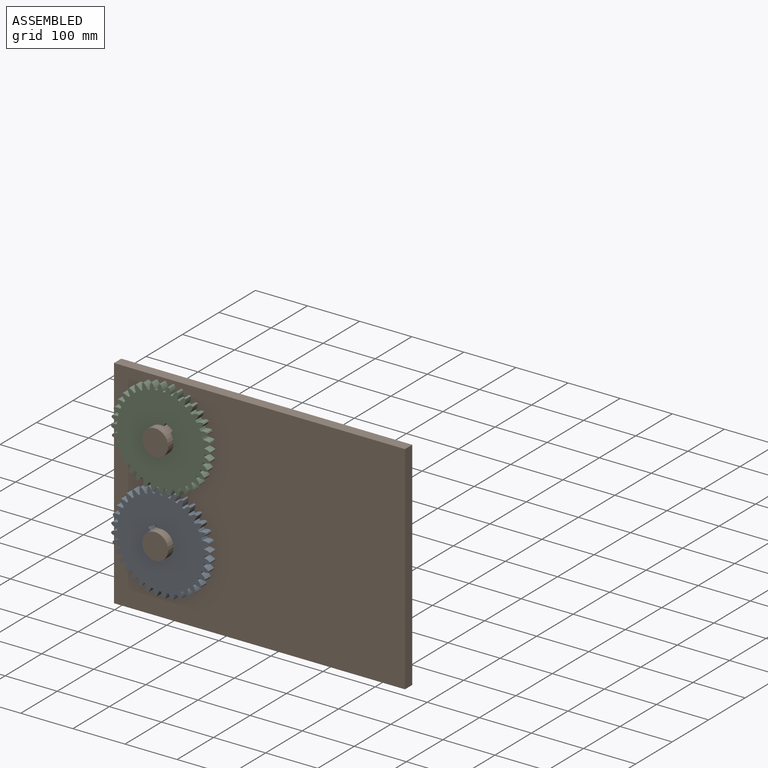
[diagram: assembled view]
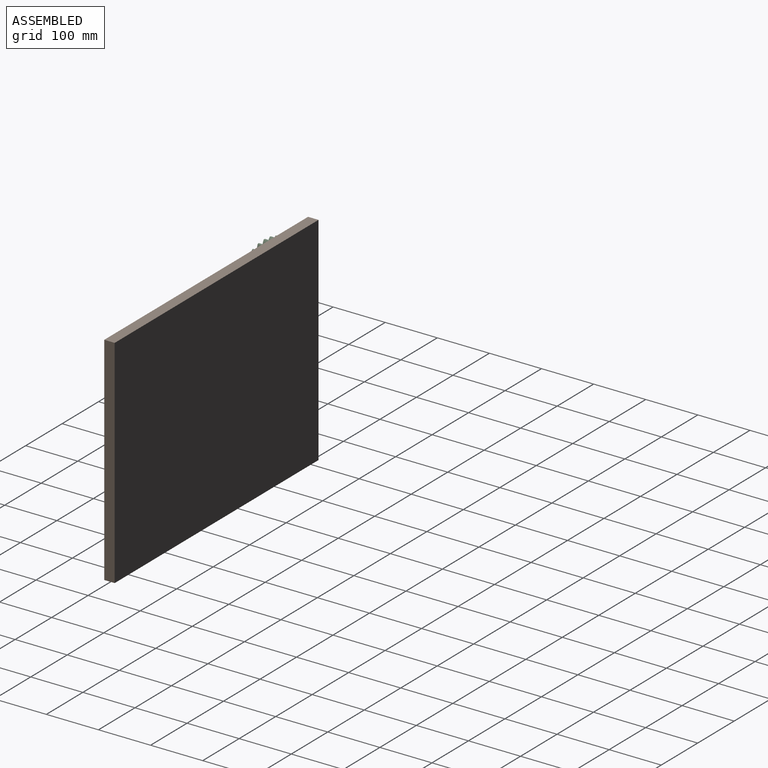
[diagram: assembled view, second angle]
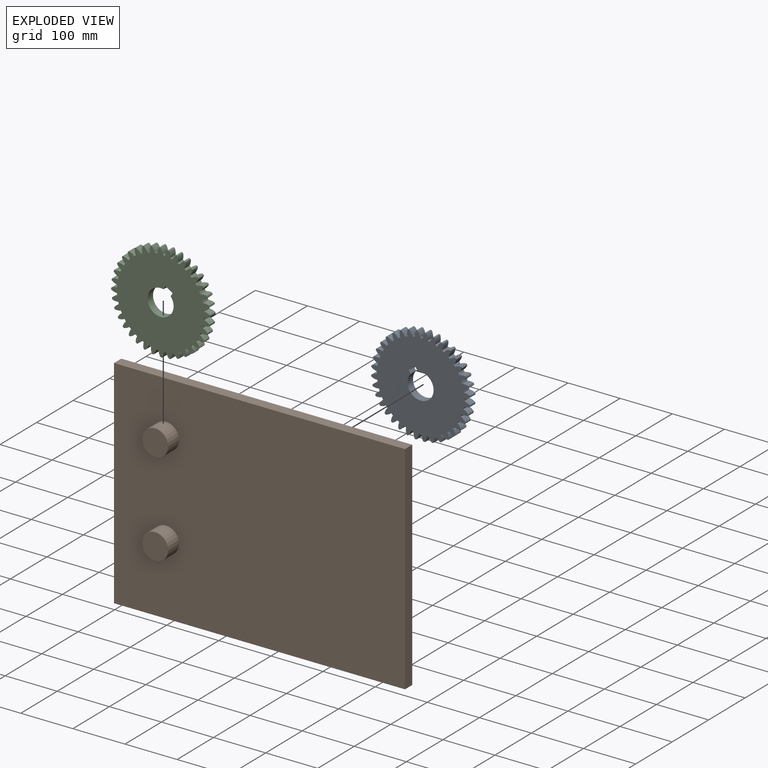
[diagram: exploded view]
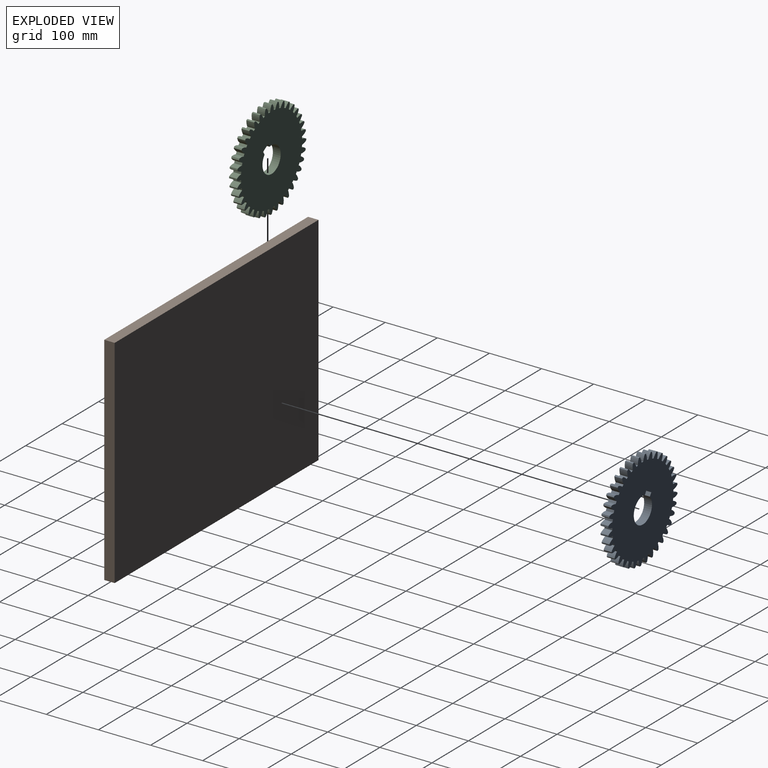
[diagram: exploded view, second angle]
ASSEMBLY  parts=3 mates=2
PART A: 150 faces, bbox 189.9x15x189.9 mm
  f0: cylinder r=83.75mm len=15mm, axis (0,1,0), area 66.8mm2, adj f39,f40,f142,f145
  f1: cylinder r=83.75mm len=15mm, axis (0,1,0), area 66.8mm2, adj f39,f40,f49,f52
  f2: cylinder r=83.75mm len=15mm, axis (0,1,0), area 66.8mm2, adj f39,f40,f51,f55
  f3: cylinder r=83.75mm len=15mm, axis (0,1,0), area 66.8mm2, adj f39,f40,f109,f112
  f4: cylinder r=83.75mm len=15mm, axis (0,1,0), area 66.8mm2, adj f39,f40,f139,f141
  f5: cylinder r=83.75mm len=15mm, axis (0,1,0), area 66.8mm2, adj f39,f40,f130,f133
  f6: cylinder r=83.75mm len=15mm, axis (0,1,0), area 66.8mm2, adj f39,f40,f115,f118
  f7: cylinder r=83.75mm len=15mm, axis (0,1,0), area 66.8mm2, adj f39,f40,f127,f129
  f8: cylinder r=83.75mm len=15mm, axis (0,1,0), area 66.8mm2, adj f39,f40,f132,f136
  f9: cylinder r=83.75mm len=15mm, axis (0,1,0), area 66.8mm2, adj f39,f40,f94,f97
  f10: cylinder r=83.75mm len=15mm, axis (0,1,0), area 66.8mm2, adj f39,f40,f61,f64
  f11: cylinder r=83.75mm len=15mm, axis (0,1,0), area 66.8mm2, adj f39,f40,f54,f58
  f12: cylinder r=83.75mm len=15mm, axis (0,1,0), area 66.8mm2, adj f39,f40,f124,f126
  f13: cylinder r=83.75mm len=15mm, axis (0,1,0), area 66.8mm2, adj f39,f40,f103,f106
  f14: cylinder r=83.75mm len=15mm, axis (0,1,0), area 66.8mm2, adj f39,f40,f111,f114
  f15: cylinder r=83.75mm len=15mm, axis (0,1,0), area 66.8mm2, adj f39,f40,f57,f60
  f16: cylinder r=83.75mm len=15mm, axis (0,1,0), area 66.8mm2, adj f39,f40,f63,f67
  f17: cylinder r=83.75mm len=15mm, axis (0,1,0), area 66.8mm2, adj f39,f40,f66,f70
  f18: cylinder r=83.75mm len=15mm, axis (0,1,0), area 66.8mm2, adj f39,f40,f69,f73
  f19: cylinder r=83.75mm len=15mm, axis (0,1,0), area 66.8mm2, adj f39,f40,f72,f76
  f20: cylinder r=83.75mm len=15mm, axis (0,1,0), area 66.8mm2, adj f39,f40,f75,f79
  f21: cylinder r=83.75mm len=15mm, axis (0,1,0), area 66.8mm2, adj f39,f40,f78,f82
  f22: cylinder r=83.75mm len=15mm, axis (0,1,0), area 66.8mm2, adj f39,f40,f81,f85
  f23: cylinder r=83.75mm len=15mm, axis (0,1,0), area 66.8mm2, adj f39,f40,f84,f88
  f24: cylinder r=83.75mm len=15mm, axis (0,1,0), area 66.8mm2, adj f39,f40,f87,f91
  f25: cylinder r=83.75mm len=15mm, axis (0,1,0), area 66.8mm2, adj f39,f40,f90,f93
  f26: cylinder r=83.75mm len=15mm, axis (0,1,0), area 66.8mm2, adj f39,f40,f100,f102
  f27: cylinder r=83.75mm len=15mm, axis (0,1,0), area 66.8mm2, adj f39,f40,f46,f48
  f28: cylinder r=83.75mm len=15mm, axis (0,1,0), area 66.8mm2, adj f39,f40,f121,f123
  f29: cylinder r=83.75mm len=15mm, axis (0,1,0), area 66.8mm2, adj f38,f39,f40,f143
  f30: cylinder r=83.75mm len=15mm, axis (0,1,0), area 66.8mm2, adj f39,f40,f105,f108
  f31: cylinder r=83.75mm len=15mm, axis (0,1,0), area 66.8mm2, adj f39,f40,f42,f45
  f32: cylinder r=83.75mm len=15mm, axis (0,1,0), area 66.8mm2, adj f39,f40,f117,f120
  f33: cylinder r=83.75mm len=15mm, axis (0,1,0), area 66.8mm2, adj f39,f40,f96,f99
  f34: cylinder r=83.75mm len=15mm, axis (0,1,0), area 66.8mm2, adj f39,f40,f135,f138
  f35: cylinder r=83.75mm len=15mm, axis (0,1,0), area 66.8mm2, adj f36,f39,f40,f43
  f36: cylinder r=22.5mm len=15mm, axis (0,1,0), area 181.4mm2, adj f35,f37,f39,f40
  f37: cylinder r=95mm len=15mm, axis (0,1,0), area 44.4mm2, adj f36,f38,f39,f40
  f38: cylinder r=22.5mm len=15mm, axis (0,1,0), area 181.4mm2, adj f29,f37,f39,f40
  f39: plane 189.93x189.93mm, normal (0,-1,0), area 23086.6mm2, adj f0,f1,f2,f3,f4,f5,f6,f7
  f40: plane 189.93x189.93mm, normal (0,1,0), area 23086.6mm2, adj f0,f1,f2,f3,f4,f5,f6,f7
  f41: cylinder r=95mm len=15mm, axis (0,1,0), area 44.4mm2, adj f39,f40,f42,f43
  f42: cylinder r=22.5mm len=15mm, axis (0,1,0), area 181.4mm2, adj f31,f39,f40,f41
  f43: cylinder r=22.5mm len=15mm, axis (0,1,0), area 181.4mm2, adj f35,f39,f40,f41
  f44: cylinder r=95mm len=15mm, axis (0,1,0), area 44.4mm2, adj f39,f40,f45,f46
  f45: cylinder r=22.5mm len=15mm, axis (0,1,0), area 181.4mm2, adj f31,f39,f40,f44
  f46: cylinder r=22.5mm len=15mm, axis (0,1,0), area 181.4mm2, adj f27,f39,f40,f44
  f47: cylinder r=95mm len=15mm, axis (0,1,0), area 44.4mm2, adj f39,f40,f48,f49
  f48: cylinder r=22.5mm len=15mm, axis (0,1,0), area 181.4mm2, adj f27,f39,f40,f47
  f49: cylinder r=22.5mm len=15mm, axis (0,1,0), area 181.4mm2, adj f1,f39,f40,f47
  f50: cylinder r=95mm len=15mm, axis (0,1,0), area 44.4mm2, adj f39,f40,f51,f52
  f51: cylinder r=22.5mm len=15mm, axis (0,1,0), area 181.4mm2, adj f2,f39,f40,f50
  f52: cylinder r=22.5mm len=15mm, axis (0,1,0), area 181.4mm2, adj f1,f39,f40,f50
  f53: cylinder r=95mm len=15mm, axis (0,1,0), area 44.4mm2, adj f39,f40,f54,f55
  f54: cylinder r=22.5mm len=15mm, axis (0,1,0), area 181.4mm2, adj f11,f39,f40,f53
  f55: cylinder r=22.5mm len=15mm, axis (0,1,0), area 181.4mm2, adj f2,f39,f40,f53
  f56: cylinder r=95mm len=15mm, axis (0,1,0), area 44.4mm2, adj f39,f40,f57,f58
  f57: cylinder r=22.5mm len=15mm, axis (0,1,0), area 181.4mm2, adj f15,f39,f40,f56
  f58: cylinder r=22.5mm len=15mm, axis (0,1,0), area 181.4mm2, adj f11,f39,f40,f56
  f59: cylinder r=95mm len=15mm, axis (0,1,0), area 44.4mm2, adj f39,f40,f60,f61
  f60: cylinder r=22.5mm len=15mm, axis (0,1,0), area 181.4mm2, adj f15,f39,f40,f59
  f61: cylinder r=22.5mm len=15mm, axis (0,1,0), area 181.4mm2, adj f10,f39,f40,f59
  f62: cylinder r=95mm len=15mm, axis (0,1,0), area 44.4mm2, adj f39,f40,f63,f64
  f63: cylinder r=22.5mm len=15mm, axis (0,1,0), area 181.4mm2, adj f16,f39,f40,f62
  f64: cylinder r=22.5mm len=15mm, axis (0,1,0), area 181.4mm2, adj f10,f39,f40,f62
  f65: cylinder r=95mm len=15mm, axis (0,1,0), area 44.4mm2, adj f39,f40,f66,f67
  f66: cylinder r=22.5mm len=15mm, axis (0,1,0), area 181.4mm2, adj f17,f39,f40,f65
  f67: cylinder r=22.5mm len=15mm, axis (0,1,0), area 181.4mm2, adj f16,f39,f40,f65
  f68: cylinder r=95mm len=15mm, axis (0,1,0), area 44.4mm2, adj f39,f40,f69,f70
  f69: cylinder r=22.5mm len=15mm, axis (0,1,0), area 181.4mm2, adj f18,f39,f40,f68
  f70: cylinder r=22.5mm len=15mm, axis (0,1,0), area 181.4mm2, adj f17,f39,f40,f68
  f71: cylinder r=95mm len=15mm, axis (0,1,0), area 44.4mm2, adj f39,f40,f72,f73
  f72: cylinder r=22.5mm len=15mm, axis (0,1,0), area 181.4mm2, adj f19,f39,f40,f71
  f73: cylinder r=22.5mm len=15mm, axis (0,1,0), area 181.4mm2, adj f18,f39,f40,f71
  f74: cylinder r=95mm len=15mm, axis (0,1,0), area 44.4mm2, adj f39,f40,f75,f76
  f75: cylinder r=22.5mm len=15mm, axis (0,1,0), area 181.4mm2, adj f20,f39,f40,f74
  f76: cylinder r=22.5mm len=15mm, axis (0,1,0), area 181.4mm2, adj f19,f39,f40,f74
  f77: cylinder r=95mm len=15mm, axis (0,1,0), area 44.4mm2, adj f39,f40,f78,f79
  f78: cylinder r=22.5mm len=15mm, axis (0,1,0), area 181.4mm2, adj f21,f39,f40,f77
  f79: cylinder r=22.5mm len=15mm, axis (0,1,0), area 181.4mm2, adj f20,f39,f40,f77
  f80: cylinder r=95mm len=15mm, axis (0,1,0), area 44.4mm2, adj f39,f40,f81,f82
  f81: cylinder r=22.5mm len=15mm, axis (0,1,0), area 181.4mm2, adj f22,f39,f40,f80
  f82: cylinder r=22.5mm len=15mm, axis (0,1,0), area 181.4mm2, adj f21,f39,f40,f80
  f83: cylinder r=95mm len=15mm, axis (0,1,0), area 44.4mm2, adj f39,f40,f84,f85
  f84: cylinder r=22.5mm len=15mm, axis (0,1,0), area 181.4mm2, adj f23,f39,f40,f83
  f85: cylinder r=22.5mm len=15mm, axis (0,1,0), area 181.4mm2, adj f22,f39,f40,f83
  f86: cylinder r=95mm len=15mm, axis (0,1,0), area 44.4mm2, adj f39,f40,f87,f88
  f87: cylinder r=22.5mm len=15mm, axis (0,1,0), area 181.4mm2, adj f24,f39,f40,f86
  f88: cylinder r=22.5mm len=15mm, axis (0,1,0), area 181.4mm2, adj f23,f39,f40,f86
  f89: cylinder r=95mm len=15mm, axis (0,1,0), area 44.4mm2, adj f39,f40,f90,f91
  f90: cylinder r=22.5mm len=15mm, axis (0,1,0), area 181.4mm2, adj f25,f39,f40,f89
  f91: cylinder r=22.5mm len=15mm, axis (0,1,0), area 181.4mm2, adj f24,f39,f40,f89
  f92: cylinder r=95mm len=15mm, axis (0,1,0), area 44.4mm2, adj f39,f40,f93,f94
  f93: cylinder r=22.5mm len=15mm, axis (0,1,0), area 181.4mm2, adj f25,f39,f40,f92
  f94: cylinder r=22.5mm len=15mm, axis (0,1,0), area 181.4mm2, adj f9,f39,f40,f92
  f95: cylinder r=95mm len=15mm, axis (0,1,0), area 44.4mm2, adj f39,f40,f96,f97
  f96: cylinder r=22.5mm len=15mm, axis (0,1,0), area 181.4mm2, adj f33,f39,f40,f95
  f97: cylinder r=22.5mm len=15mm, axis (0,1,0), area 181.4mm2, adj f9,f39,f40,f95
  f98: cylinder r=95mm len=15mm, axis (0,1,0), area 44.4mm2, adj f39,f40,f99,f100
  f99: cylinder r=22.5mm len=15mm, axis (0,1,0), area 181.4mm2, adj f33,f39,f40,f98
  f100: cylinder r=22.5mm len=15mm, axis (0,1,0), area 181.4mm2, adj f26,f39,f40,f98
  f101: cylinder r=95mm len=15mm, axis (0,1,0), area 44.4mm2, adj f39,f40,f102,f103
  f102: cylinder r=22.5mm len=15mm, axis (0,1,0), area 181.4mm2, adj f26,f39,f40,f101
  f103: cylinder r=22.5mm len=15mm, axis (0,1,0), area 181.4mm2, adj f13,f39,f40,f101
  f104: cylinder r=95mm len=15mm, axis (0,1,0), area 44.4mm2, adj f39,f40,f105,f106
  f105: cylinder r=22.5mm len=15mm, axis (0,1,0), area 181.4mm2, adj f30,f39,f40,f104
  f106: cylinder r=22.5mm len=15mm, axis (0,1,0), area 181.4mm2, adj f13,f39,f40,f104
  f107: cylinder r=95mm len=15mm, axis (0,1,0), area 44.4mm2, adj f39,f40,f108,f109
  f108: cylinder r=22.5mm len=15mm, axis (0,1,0), area 181.4mm2, adj f30,f39,f40,f107
  f109: cylinder r=22.5mm len=15mm, axis (0,1,0), area 181.4mm2, adj f3,f39,f40,f107
  f110: cylinder r=95mm len=15mm, axis (0,1,0), area 44.4mm2, adj f39,f40,f111,f112
  f111: cylinder r=22.5mm len=15mm, axis (0,1,0), area 181.4mm2, adj f14,f39,f40,f110
  f112: cylinder r=22.5mm len=15mm, axis (0,1,0), area 181.4mm2, adj f3,f39,f40,f110
  f113: cylinder r=95mm len=15mm, axis (0,1,0), area 44.4mm2, adj f39,f40,f114,f115
  f114: cylinder r=22.5mm len=15mm, axis (0,1,0), area 181.4mm2, adj f14,f39,f40,f113
  f115: cylinder r=22.5mm len=15mm, axis (0,1,0), area 181.4mm2, adj f6,f39,f40,f113
  f116: cylinder r=95mm len=15mm, axis (0,1,0), area 44.4mm2, adj f39,f40,f117,f118
  f117: cylinder r=22.5mm len=15mm, axis (0,1,0), area 181.4mm2, adj f32,f39,f40,f116
  f118: cylinder r=22.5mm len=15mm, axis (0,1,0), area 181.4mm2, adj f6,f39,f40,f116
  f119: cylinder r=95mm len=15mm, axis (0,1,0), area 44.4mm2, adj f39,f40,f120,f121
  f120: cylinder r=22.5mm len=15mm, axis (0,1,0), area 181.4mm2, adj f32,f39,f40,f119
  f121: cylinder r=22.5mm len=15mm, axis (0,1,0), area 181.4mm2, adj f28,f39,f40,f119
  f122: cylinder r=95mm len=15mm, axis (0,1,0), area 44.4mm2, adj f39,f40,f123,f124
  f123: cylinder r=22.5mm len=15mm, axis (0,1,0), area 181.4mm2, adj f28,f39,f40,f122
  f124: cylinder r=22.5mm len=15mm, axis (0,1,0), area 181.4mm2, adj f12,f39,f40,f122
  f125: cylinder r=95mm len=15mm, axis (0,1,0), area 44.4mm2, adj f39,f40,f126,f127
  f126: cylinder r=22.5mm len=15mm, axis (0,1,0), area 181.4mm2, adj f12,f39,f40,f125
  f127: cylinder r=22.5mm len=15mm, axis (0,1,0), area 181.4mm2, adj f7,f39,f40,f125
  f128: cylinder r=95mm len=15mm, axis (0,1,0), area 44.4mm2, adj f39,f40,f129,f130
  f129: cylinder r=22.5mm len=15mm, axis (0,1,0), area 181.4mm2, adj f7,f39,f40,f128
  f130: cylinder r=22.5mm len=15mm, axis (0,1,0), area 181.4mm2, adj f5,f39,f40,f128
  f131: cylinder r=95mm len=15mm, axis (0,1,0), area 44.4mm2, adj f39,f40,f132,f133
  f132: cylinder r=22.5mm len=15mm, axis (0,1,0), area 181.4mm2, adj f8,f39,f40,f131
  f133: cylinder r=22.5mm len=15mm, axis (0,1,0), area 181.4mm2, adj f5,f39,f40,f131
  f134: cylinder r=95mm len=15mm, axis (0,1,0), area 44.4mm2, adj f39,f40,f135,f136
  f135: cylinder r=22.5mm len=15mm, axis (0,1,0), area 181.4mm2, adj f34,f39,f40,f134
  f136: cylinder r=22.5mm len=15mm, axis (0,1,0), area 181.4mm2, adj f8,f39,f40,f134
  f137: cylinder r=95mm len=15mm, axis (0,1,0), area 44.4mm2, adj f39,f40,f138,f139
  f138: cylinder r=22.5mm len=15mm, axis (0,1,0), area 181.4mm2, adj f34,f39,f40,f137
  f139: cylinder r=22.5mm len=15mm, axis (0,1,0), area 181.4mm2, adj f4,f39,f40,f137
  f140: cylinder r=95mm len=15mm, axis (0,1,0), area 44.4mm2, adj f39,f40,f141,f142
  f141: cylinder r=22.5mm len=15mm, axis (0,1,0), area 181.4mm2, adj f4,f39,f40,f140
  f142: cylinder r=22.5mm len=15mm, axis (0,1,0), area 181.4mm2, adj f0,f39,f40,f140
  f143: cylinder r=22.5mm len=15mm, axis (0,1,0), area 181.4mm2, adj f29,f39,f40,f144
  f144: cylinder r=95mm len=15mm, axis (0,1,0), area 44.4mm2, adj f39,f40,f143,f145
  f145: cylinder r=22.5mm len=15mm, axis (0,1,0), area 181.4mm2, adj f0,f39,f40,f144
  f146: plane 15x7.31mm, normal (-1,0,0), area 109.7mm2, adj f39,f40,f147,f149
  f147: cylinder r=25mm len=50mm, axis (0,1,0), area 2111.9mm2, adj f39,f40,f146,f148
  f148: plane 15x7.31mm, normal (1,0,0), area 109.7mm2, adj f39,f40,f147,f149
  f149: plane 16x15mm, normal (0,0,-1), area 240mm2, adj f39,f40,f146,f148
PART B: 10 faces, bbox 558.6x50x416.6 mm
  f0: plane 416.62x20mm, normal (-1,0,0), area 8332.4mm2, adj f1,f3,f4,f5
  f1: plane 558.59x20mm, normal (0,0,-1), area 11171.8mm2, adj f0,f2,f4,f5
  f2: plane 416.62x20mm, normal (1,0,0), area 8332.4mm2, adj f1,f3,f4,f5
  f3: plane 558.59x20mm, normal (0,0,1), area 11171.8mm2, adj f0,f2,f4,f5
  f4: plane 558.59x416.62mm, normal (0,1,0), area 232720.3mm2, adj f0,f1,f2,f3
  f5: plane 558.59x416.62mm, normal (0,-1,0), area 228793.3mm2, adj f0,f1,f2,f3,f6,f8
  f6: cylinder r=25mm len=50mm, axis (0,1,0), area 4712.4mm2, adj f5,f7
  f7: plane 50x50mm, normal (0,-1,0), area 1963.5mm2, adj f6
  f8: cylinder r=25mm len=50mm, axis (0,1,0), area 4712.4mm2, adj f5,f9
  f9: plane 50x50mm, normal (0,-1,0), area 1963.5mm2, adj f8
PART C: same geometry as A
PLACE A rot(axis=(0,-1,0),31.7deg) t=(-201.82,0.86,-58.4)mm
PLACE B t=(-25.75,0.86,69.46)mm fixed
PLACE C rot(axis=(0,1,0),31.7deg) t=(-201.82,0.86,121.6)mm
MATE revolute C.f0 <-> B.f6  axis (0,1,0) through (-201.82,0.86,121.6)mm
MATE revolute A.f0 <-> B.f8  axis (0,1,0) through (-201.82,0.86,-58.4)mm
